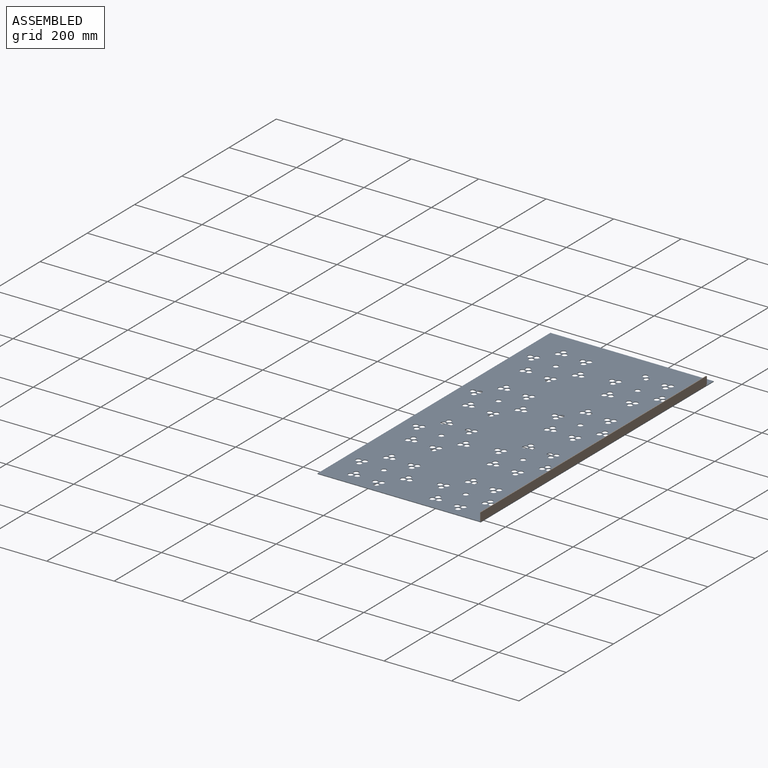
[diagram: assembled view]
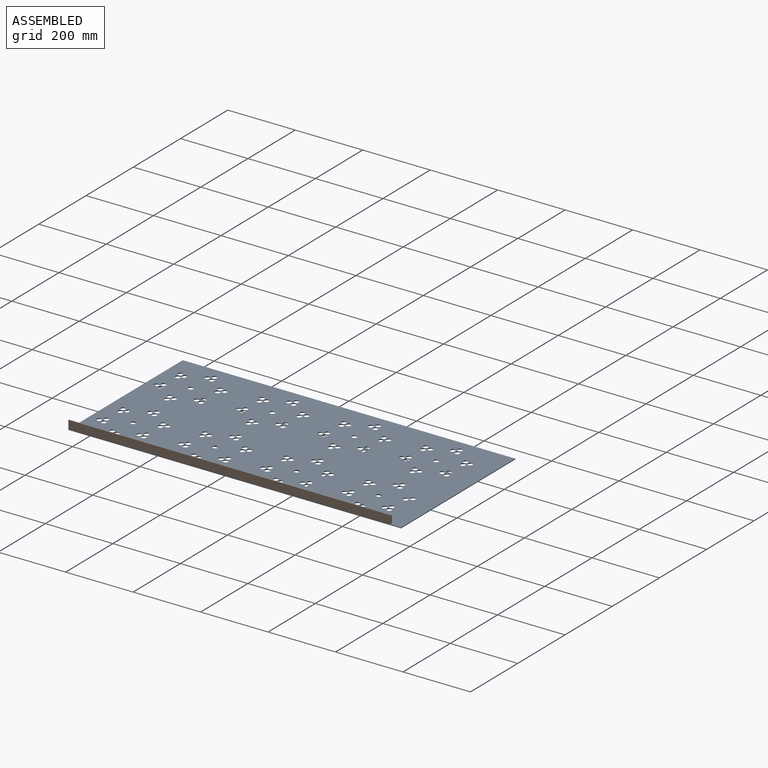
[diagram: assembled view, second angle]
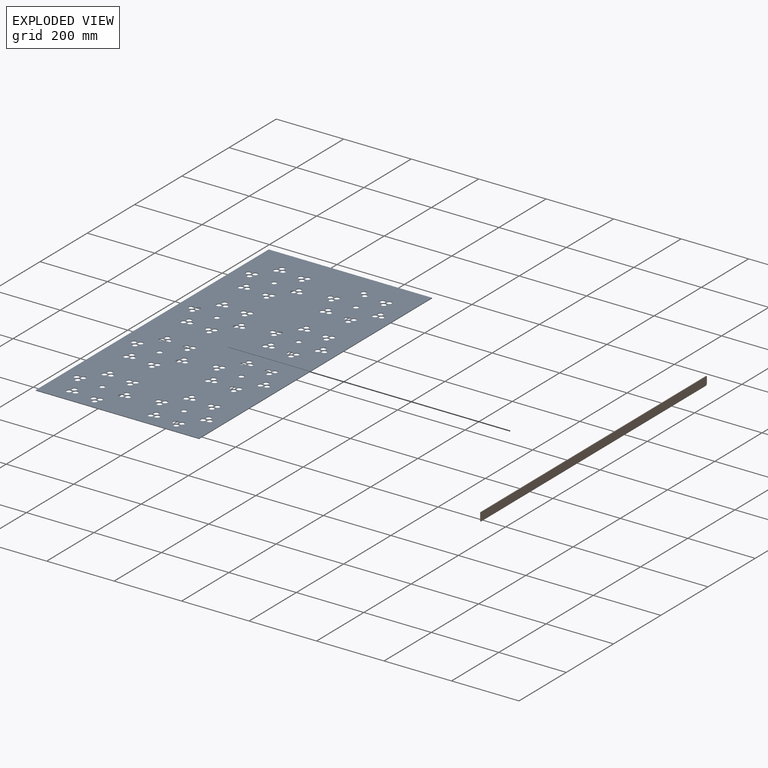
[diagram: exploded view]
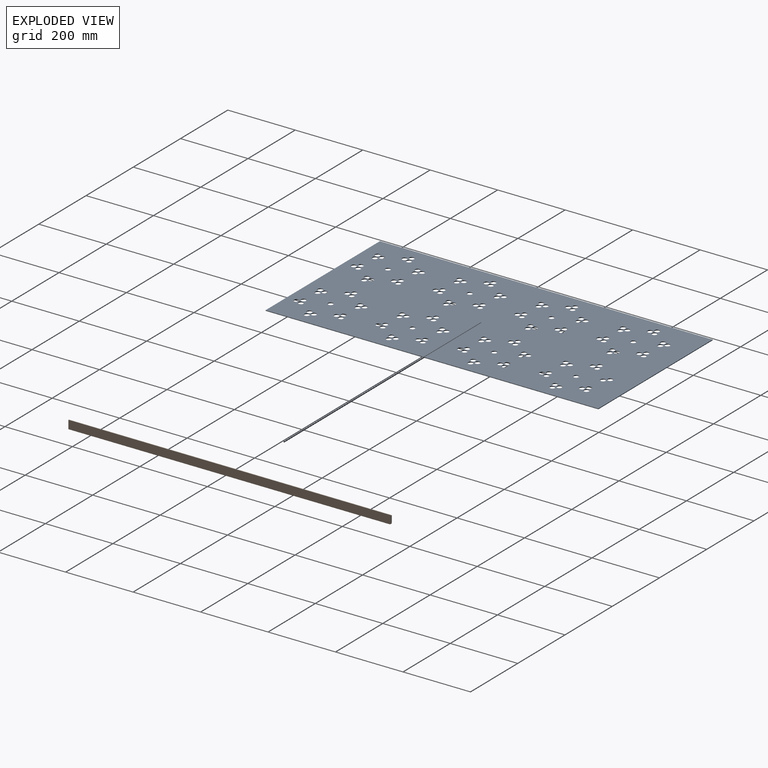
[diagram: exploded view, second angle]
ASSEMBLY  parts=2 mates=3
PART A: 157 faces, bbox 484x986x2 mm
  f0: plane 986x484mm, normal (0,0,1), area 450540.1mm2, adj f1,f3,f4,f5,f6,f7,f8,f9
  f1: plane 986x2mm, normal (-1,0,0), area 1972mm2, adj f0,f2,f4,f5
  f2: plane 986x484mm, normal (0,0,-1), area 450540.1mm2, adj f1,f3,f4,f5,f6,f7,f8,f9
  f3: plane 986x2mm, normal (1,0,0), area 1972mm2, adj f0,f2,f4,f5
  f4: plane 484x2mm, normal (0,-1,0), area 968mm2, adj f0,f1,f2,f3
  f5: plane 484x2mm, normal (0,1,0), area 968mm2, adj f0,f1,f2,f3
  f6: cylinder r=7.5mm len=15mm, axis (0,0,-1), area 94.2mm2, adj f0,f2
  f7: cylinder r=7.5mm len=15mm, axis (0,0,-1), area 94.2mm2, adj f0,f2
  f8: cylinder r=7.5mm len=15mm, axis (0,0,-1), area 94.2mm2, adj f0,f2
  f9: cylinder r=7.5mm len=15mm, axis (0,0,-1), area 94.2mm2, adj f0,f2
  f10: cylinder r=7.5mm len=15mm, axis (0,0,-1), area 94.2mm2, adj f0,f2
  f11: cylinder r=7.5mm len=15mm, axis (0,0,-1), area 94.2mm2, adj f0,f2
  f12: cylinder r=7.5mm len=15mm, axis (0,0,-1), area 94.2mm2, adj f0,f2
  f13: cylinder r=7.5mm len=15mm, axis (0,0,-1), area 94.2mm2, adj f0,f2
  f14: cylinder r=7.5mm len=15mm, axis (0,0,-1), area 94.2mm2, adj f0,f2
  f15: cylinder r=7.5mm len=15mm, axis (0,0,-1), area 94.2mm2, adj f0,f2
  f16: cylinder r=7.5mm len=15mm, axis (0,0,-1), area 94.2mm2, adj f0,f2
  f17: cylinder r=7.5mm len=15mm, axis (0,0,-1), area 94.2mm2, adj f0,f2
  f18: cylinder r=7.5mm len=15mm, axis (0,0,-1), area 94.2mm2, adj f0,f2
  f19: cylinder r=7.5mm len=15mm, axis (0,0,-1), area 94.2mm2, adj f0,f2
  f20: cylinder r=7.5mm len=15mm, axis (0,0,-1), area 94.2mm2, adj f0,f2
  f21: cylinder r=7.5mm len=15mm, axis (0,0,-1), area 94.2mm2, adj f0,f2
  f22: cylinder r=7.5mm len=15mm, axis (0,0,-1), area 94.2mm2, adj f0,f2
  f23: cylinder r=7.5mm len=15mm, axis (0,0,-1), area 94.2mm2, adj f0,f2
  f24: cylinder r=7.5mm len=15mm, axis (0,0,-1), area 94.2mm2, adj f0,f2
  f25: cylinder r=7.5mm len=15mm, axis (0,0,-1), area 94.2mm2, adj f0,f2
  f26: cylinder r=7.5mm len=15mm, axis (0,0,-1), area 94.2mm2, adj f0,f2
  f27: cylinder r=7.5mm len=15mm, axis (0,0,-1), area 94.2mm2, adj f0,f2
  f28: cylinder r=7.5mm len=15mm, axis (0,0,-1), area 94.2mm2, adj f0,f2
  f29: cylinder r=7.5mm len=15mm, axis (0,0,-1), area 94.2mm2, adj f0,f2
  f30: cylinder r=7.5mm len=15mm, axis (0,0,-1), area 94.2mm2, adj f0,f2
  f31: cylinder r=7.5mm len=15mm, axis (0,0,-1), area 94.2mm2, adj f0,f2
  f32: cylinder r=7.5mm len=15mm, axis (0,0,-1), area 94.2mm2, adj f0,f2
  f33: cylinder r=7.5mm len=15mm, axis (0,0,-1), area 94.2mm2, adj f0,f2
  f34: cylinder r=7.5mm len=15mm, axis (0,0,-1), area 94.2mm2, adj f0,f2
  f35: cylinder r=7.5mm len=15mm, axis (0,0,-1), area 94.2mm2, adj f0,f2
  f36: cylinder r=7.5mm len=15mm, axis (0,0,-1), area 94.2mm2, adj f0,f2
  f37: cylinder r=7.5mm len=15mm, axis (0,0,-1), area 94.2mm2, adj f0,f2
  f38: cylinder r=7.5mm len=15mm, axis (0,0,-1), area 94.2mm2, adj f0,f2
  f39: cylinder r=7.5mm len=15mm, axis (0,0,-1), area 94.2mm2, adj f0,f2
  f40: cylinder r=7.5mm len=15mm, axis (0,0,-1), area 94.2mm2, adj f0,f2
  f41: cylinder r=7.5mm len=15mm, axis (0,0,-1), area 94.2mm2, adj f0,f2
  f42: cylinder r=7.5mm len=15mm, axis (0,0,-1), area 94.2mm2, adj f0,f2
  f43: cylinder r=7.5mm len=15mm, axis (0,0,-1), area 94.2mm2, adj f0,f2
  f44: cylinder r=7.5mm len=15mm, axis (0,0,-1), area 94.2mm2, adj f0,f2
  f45: cylinder r=7.5mm len=15mm, axis (0,0,-1), area 94.2mm2, adj f0,f2
  f46: cylinder r=7.5mm len=15mm, axis (0,0,-1), area 94.2mm2, adj f0,f2
  f47: cylinder r=7.5mm len=15mm, axis (0,0,-1), area 94.2mm2, adj f0,f2
  f48: cylinder r=7.5mm len=15mm, axis (0,0,-1), area 94.2mm2, adj f0,f2
  f49: cylinder r=7.5mm len=15mm, axis (0,0,-1), area 94.2mm2, adj f0,f2
  f50: cylinder r=7.5mm len=15mm, axis (0,0,-1), area 94.2mm2, adj f0,f2
  f51: cylinder r=7.5mm len=15mm, axis (0,0,-1), area 94.2mm2, adj f0,f2
  f52: cylinder r=7.5mm len=15mm, axis (0,0,-1), area 94.2mm2, adj f0,f2
  f53: cylinder r=7.5mm len=15mm, axis (0,0,-1), area 94.2mm2, adj f0,f2
  f54: cylinder r=7.5mm len=15mm, axis (0,0,-1), area 94.2mm2, adj f0,f2
  f55: cylinder r=7.5mm len=15mm, axis (0,0,-1), area 94.2mm2, adj f0,f2
  f56: cylinder r=7.5mm len=15mm, axis (0,0,-1), area 94.2mm2, adj f0,f2
  f57: cylinder r=7.5mm len=15mm, axis (0,0,-1), area 94.2mm2, adj f0,f2
  f58: cylinder r=7.5mm len=15mm, axis (0,0,-1), area 94.2mm2, adj f0,f2
  f59: cylinder r=7.5mm len=15mm, axis (0,0,-1), area 94.2mm2, adj f0,f2
  f60: cylinder r=7.5mm len=15mm, axis (0,0,-1), area 94.2mm2, adj f0,f2
  f61: cylinder r=7.5mm len=15mm, axis (0,0,-1), area 94.2mm2, adj f0,f2
  f62: cylinder r=7.5mm len=15mm, axis (0,0,-1), area 94.2mm2, adj f0,f2
  f63: cylinder r=7.5mm len=15mm, axis (0,0,-1), area 94.2mm2, adj f0,f2
  f64: cylinder r=7.5mm len=15mm, axis (0,0,-1), area 94.2mm2, adj f0,f2
  f65: cylinder r=7.5mm len=15mm, axis (0,0,-1), area 94.2mm2, adj f0,f2
  f66: cylinder r=7.5mm len=15mm, axis (0,0,-1), area 94.2mm2, adj f0,f2
  f67: cylinder r=7.5mm len=15mm, axis (0,0,-1), area 94.2mm2, adj f0,f2
  f68: cylinder r=7.5mm len=15mm, axis (0,0,-1), area 94.2mm2, adj f0,f2
  f69: cylinder r=7.5mm len=15mm, axis (0,0,-1), area 94.2mm2, adj f0,f2
  f70: cylinder r=7.5mm len=15mm, axis (0,0,-1), area 94.2mm2, adj f0,f2
  f71: cylinder r=7.5mm len=15mm, axis (0,0,-1), area 94.2mm2, adj f0,f2
  f72: cylinder r=7.5mm len=15mm, axis (0,0,-1), area 94.2mm2, adj f0,f2
  f73: cylinder r=7.5mm len=15mm, axis (0,0,-1), area 94.2mm2, adj f0,f2
  f74: cylinder r=7.5mm len=15mm, axis (0,0,-1), area 94.2mm2, adj f0,f2
  f75: cylinder r=7.5mm len=15mm, axis (0,0,-1), area 94.2mm2, adj f0,f2
  f76: cylinder r=7.5mm len=15mm, axis (0,0,-1), area 94.2mm2, adj f0,f2
  f77: cylinder r=7.5mm len=15mm, axis (0,0,-1), area 94.2mm2, adj f0,f2
  f78: cylinder r=7.5mm len=15mm, axis (0,0,-1), area 94.2mm2, adj f0,f2
  f79: cylinder r=7.5mm len=15mm, axis (0,0,-1), area 94.2mm2, adj f0,f2
  f80: cylinder r=7.5mm len=15mm, axis (0,0,-1), area 94.2mm2, adj f0,f2
  f81: cylinder r=7.5mm len=15mm, axis (0,0,-1), area 94.2mm2, adj f0,f2
  f82: cylinder r=7.5mm len=15mm, axis (0,0,-1), area 94.2mm2, adj f0,f2
  f83: cylinder r=7.5mm len=15mm, axis (0,0,-1), area 94.2mm2, adj f0,f2
  f84: cylinder r=7.5mm len=15mm, axis (0,0,-1), area 94.2mm2, adj f0,f2
  f85: cylinder r=7.5mm len=15mm, axis (0,0,-1), area 94.2mm2, adj f0,f2
  f86: cylinder r=7.5mm len=15mm, axis (0,0,-1), area 94.2mm2, adj f0,f2
  f87: cylinder r=7.5mm len=15mm, axis (0,0,-1), area 94.2mm2, adj f0,f2
  f88: cylinder r=7.5mm len=15mm, axis (0,0,-1), area 94.2mm2, adj f0,f2
  f89: cylinder r=7.5mm len=15mm, axis (0,0,-1), area 94.2mm2, adj f0,f2
  f90: cylinder r=7.5mm len=15mm, axis (0,0,-1), area 94.2mm2, adj f0,f2
  f91: cylinder r=7.5mm len=15mm, axis (0,0,-1), area 94.2mm2, adj f0,f2
  f92: cylinder r=7.5mm len=15mm, axis (0,0,-1), area 94.2mm2, adj f0,f2
  f93: cylinder r=7.5mm len=15mm, axis (0,0,-1), area 94.2mm2, adj f0,f2
  f94: cylinder r=7.5mm len=15mm, axis (0,0,-1), area 94.2mm2, adj f0,f2
  f95: cylinder r=7.5mm len=15mm, axis (0,0,-1), area 94.2mm2, adj f0,f2
  f96: cylinder r=7.5mm len=15mm, axis (0,0,-1), area 94.2mm2, adj f0,f2
  f97: cylinder r=7.5mm len=15mm, axis (0,0,-1), area 94.2mm2, adj f0,f2
  f98: cylinder r=7.5mm len=15mm, axis (0,0,-1), area 94.2mm2, adj f0,f2
  f99: cylinder r=7.5mm len=15mm, axis (0,0,-1), area 94.2mm2, adj f0,f2
  f100: cylinder r=7.5mm len=15mm, axis (0,0,-1), area 94.2mm2, adj f0,f2
  f101: cylinder r=7.5mm len=15mm, axis (0,0,-1), area 94.2mm2, adj f0,f2
  f102: cylinder r=7.5mm len=15mm, axis (0,0,-1), area 94.2mm2, adj f0,f2
  f103: cylinder r=7.5mm len=15mm, axis (0,0,-1), area 94.2mm2, adj f0,f2
  f104: cylinder r=7.5mm len=15mm, axis (0,0,-1), area 94.2mm2, adj f0,f2
  f105: cylinder r=7.5mm len=15mm, axis (0,0,-1), area 94.2mm2, adj f0,f2
  f106: cylinder r=7.5mm len=15mm, axis (0,0,-1), area 94.2mm2, adj f0,f2
  f107: cylinder r=7.5mm len=15mm, axis (0,0,-1), area 94.2mm2, adj f0,f2
  f108: cylinder r=7.5mm len=15mm, axis (0,0,-1), area 94.2mm2, adj f0,f2
  f109: cylinder r=7.5mm len=15mm, axis (0,0,-1), area 94.2mm2, adj f0,f2
  f110: cylinder r=7.5mm len=15mm, axis (0,0,-1), area 94.2mm2, adj f0,f2
  f111: cylinder r=7.5mm len=15mm, axis (0,0,-1), area 94.2mm2, adj f0,f2
  f112: cylinder r=7.5mm len=15mm, axis (0,0,-1), area 94.2mm2, adj f0,f2
  f113: cylinder r=7.5mm len=15mm, axis (0,0,-1), area 94.2mm2, adj f0,f2
  f114: cylinder r=7.5mm len=15mm, axis (0,0,-1), area 94.2mm2, adj f0,f2
  f115: cylinder r=7.5mm len=15mm, axis (0,0,-1), area 94.2mm2, adj f0,f2
  f116: cylinder r=7.5mm len=15mm, axis (0,0,-1), area 94.2mm2, adj f0,f2
  f117: cylinder r=7.5mm len=15mm, axis (0,0,-1), area 94.2mm2, adj f0,f2
  f118: cylinder r=7.5mm len=15mm, axis (0,0,-1), area 94.2mm2, adj f0,f2
  f119: cylinder r=7.5mm len=15mm, axis (0,0,-1), area 94.2mm2, adj f0,f2
  f120: cylinder r=7.5mm len=15mm, axis (0,0,-1), area 94.2mm2, adj f0,f2
  f121: cylinder r=7.5mm len=15mm, axis (0,0,-1), area 94.2mm2, adj f0,f2
  f122: cylinder r=7.5mm len=15mm, axis (0,0,-1), area 94.2mm2, adj f0,f2
  f123: cylinder r=7.5mm len=15mm, axis (0,0,-1), area 94.2mm2, adj f0,f2
  f124: cylinder r=7.5mm len=15mm, axis (0,0,-1), area 94.2mm2, adj f0,f2
  f125: cylinder r=7.5mm len=15mm, axis (0,0,-1), area 94.2mm2, adj f0,f2
  f126: cylinder r=7.5mm len=15mm, axis (0,0,-1), area 94.2mm2, adj f0,f2
  f127: cylinder r=7.5mm len=15mm, axis (0,0,-1), area 94.2mm2, adj f0,f2
  f128: cylinder r=7.5mm len=15mm, axis (0,0,-1), area 94.2mm2, adj f0,f2
  f129: cylinder r=7.5mm len=15mm, axis (0,0,-1), area 94.2mm2, adj f0,f2
  f130: cylinder r=7.5mm len=15mm, axis (0,0,-1), area 94.2mm2, adj f0,f2
  f131: cylinder r=7.5mm len=15mm, axis (0,0,-1), area 94.2mm2, adj f0,f2
  f132: cylinder r=7.5mm len=15mm, axis (0,0,-1), area 94.2mm2, adj f0,f2
  f133: cylinder r=7.5mm len=15mm, axis (0,0,-1), area 94.2mm2, adj f0,f2
  f134: cylinder r=7.5mm len=15mm, axis (0,0,-1), area 94.2mm2, adj f0,f2
  f135: cylinder r=7.5mm len=15mm, axis (0,0,-1), area 94.2mm2, adj f0,f2
  f136: cylinder r=7.5mm len=15mm, axis (0,0,-1), area 94.2mm2, adj f0,f2
  f137: cylinder r=7.5mm len=15mm, axis (0,0,-1), area 94.2mm2, adj f0,f2
  f138: cylinder r=7.5mm len=15mm, axis (0,0,-1), area 94.2mm2, adj f0,f2
  f139: cylinder r=7.5mm len=15mm, axis (0,0,-1), area 94.2mm2, adj f0,f2
  f140: cylinder r=7.5mm len=15mm, axis (0,0,-1), area 94.2mm2, adj f0,f2
  f141: cylinder r=7.5mm len=15mm, axis (0,0,-1), area 94.2mm2, adj f0,f2
  f142: cylinder r=7.5mm len=15mm, axis (0,0,-1), area 94.2mm2, adj f0,f2
  f143: cylinder r=7.5mm len=15mm, axis (0,0,-1), area 94.2mm2, adj f0,f2
  f144: cylinder r=7.5mm len=15mm, axis (0,0,-1), area 94.2mm2, adj f0,f2
  f145: cylinder r=7.5mm len=15mm, axis (0,0,-1), area 94.2mm2, adj f0,f2
  f146: cylinder r=7.5mm len=15mm, axis (0,0,-1), area 94.2mm2, adj f0,f2
  f147: cylinder r=7.5mm len=15mm, axis (0,0,-1), area 94.2mm2, adj f0,f2
  f148: cylinder r=7.5mm len=15mm, axis (0,0,-1), area 94.2mm2, adj f0,f2
  f149: cylinder r=7.5mm len=15mm, axis (0,0,-1), area 94.2mm2, adj f0,f2
  f150: cylinder r=7.5mm len=15mm, axis (0,0,-1), area 94.2mm2, adj f0,f2
  f151: cylinder r=7.5mm len=15mm, axis (0,0,-1), area 94.2mm2, adj f0,f2
  f152: cylinder r=7.5mm len=15mm, axis (0,0,-1), area 94.2mm2, adj f0,f2
  f153: cylinder r=7.5mm len=15mm, axis (0,0,-1), area 94.2mm2, adj f0,f2
  f154: cylinder r=7.5mm len=15mm, axis (0,0,-1), area 94.2mm2, adj f0,f2
  f155: cylinder r=7.5mm len=15mm, axis (0,0,-1), area 94.2mm2, adj f0,f2
  f156: cylinder r=7.5mm len=15mm, axis (0,0,-1), area 94.2mm2, adj f0,f2
PART B: 10 faces, bbox 25x2x957 mm
  f0: plane 951x2mm, normal (-1,0,0), area 1902mm2, adj f4,f5,f6,f9
  f1: plane 19x2mm, normal (0,0,-1), area 38mm2, adj f4,f5,f8,f9
  f2: plane 955x2mm, normal (1,0,0), area 1910mm2, adj f4,f5,f7,f8
  f3: plane 23x2mm, normal (0,0,1), area 46mm2, adj f4,f5,f6,f7
  f4: plane 957x25mm, normal (0,-1,0), area 23919mm2, adj f0,f1,f2,f3,f6,f7,f8,f9
  f5: plane 957x25mm, normal (0,1,0), area 23919mm2, adj f0,f1,f2,f3,f6,f7,f8,f9
  f6: cylinder r=1mm len=2mm, axis (0,1,0), area 3.1mm2, adj f0,f3,f4,f5
  f7: cylinder r=1mm len=2mm, axis (0,-1,0), area 3.1mm2, adj f2,f3,f4,f5
  f8: cylinder r=1mm len=2mm, axis (0,1,0), area 3.1mm2, adj f1,f2,f4,f5
  f9: cylinder r=5mm len=5mm, axis (0,-1,0), area 15.7mm2, adj f0,f1,f4,f5
PLACE A t=(-737.63,50.48,172.72)mm fixed
PLACE B rot(axis=(0.58,-0.58,0.58),120deg) t=(-245.69,514.48,173.67)mm
MATE planar B.f4 <-> A.f3  axis (1,0,0) through (-243.69,35.98,198.67)mm
MATE planar A.f4 <-> B.f3  axis (0,-1,0) through (-485.69,-442.52,172.67)mm
MATE planar A.f0 <-> B.f0  axis (0,0,1) through (-485.68,51.87,173.67)mm
